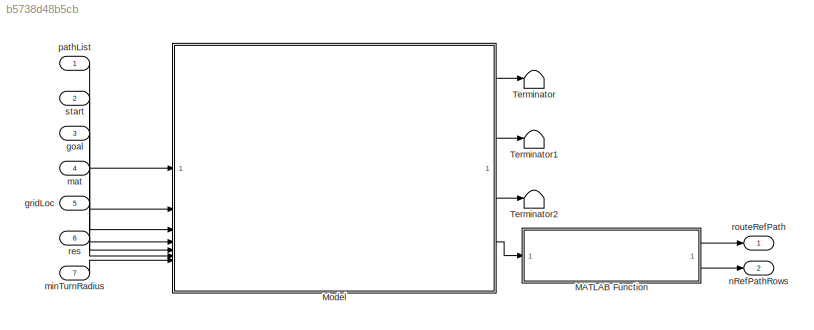
MODEL slx_b5738d48b5cb
KIND model
CONFIG AbsTol = auto
CONFIG EnableMultiTasking = off
CONFIG FixedStep = auto
CONFIG MaxStep = auto
CONFIG MinStep = auto
CONFIG RelTol = 1e-3
CONFIG SampleTimeConstraint = Unconstrained
CONFIG SolverName = FixedStepAuto
CONFIG StartTime = 0.0
CONFIG StopTime = 10.0
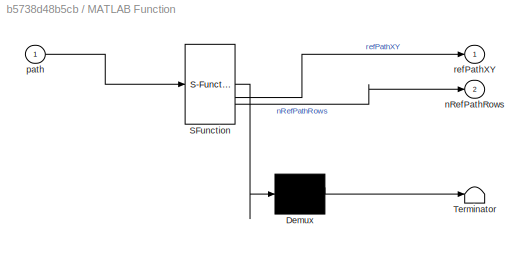
BLOCK [SubSystem] MATLAB Function
  ErrorFcn = Stateflow.Translate.translate
  LibrarySourceBlock = simulink/User-Defined\nFunctions/MATLAB Function
  PermitHierarchicalResolution = ExplicitOnly
  SFBlockType = MATLAB Function
  TreatAsAtomicUnit = on
BLOCK [Demux] MATLAB Function/ Demux 
  Outputs = 1
BLOCK [S-Function] MATLAB Function/ SFunction 
  EnableBusSupport = on
  FunctionName = sf_sfun
  Parameters = maxRefPathLen
  PortCounts = [1 3]
  SFcnIsStateOwnerBlock = off
  SFunctionDeploymentMode = off
  Tag = Stateflow S-Function 5
BLOCK [Terminator] MATLAB Function/ Terminator 
BLOCK [Outport] MATLAB Function/nRefPathRows
  Port = 2
BLOCK [Inport] MATLAB Function/path
BLOCK [Outport] MATLAB Function/refPathXY
BLOCK [ModelReference] Model
  ModelNameDialog = RoutePlanner.slx
  ModelReferenceVersion = 3.3
BLOCK [Terminator] Terminator
BLOCK [Terminator] Terminator1
BLOCK [Terminator] Terminator2
BLOCK [Inport] goal
  Port = 3
BLOCK [Inport] gridLoc
  Port = 5
BLOCK [Inport] mat
  Port = 4
BLOCK [Inport] minTurnRadius
  Port = 7
BLOCK [Outport] nRefPathRows
  Port = 2
BLOCK [Inport] pathList
  OutDataTypeStr = Bus: pathList_fixed_bus
BLOCK [Inport] res
  Port = 6
BLOCK [Outport] routeRefPath
  NameLocation = top
BLOCK [Inport] start
  Port = 2
LINE MATLAB Function:1 -> routeRefPath:1
LINE MATLAB Function:2 -> nRefPathRows:1
LINE Model:1 -> Terminator:1
LINE Model:2 -> Terminator1:1
LINE Model:3 -> Terminator2:1
LINE Model:4 -> MATLAB Function:1
LINE goal:1 -> Model:3
LINE gridLoc:1 -> Model:5
LINE mat:1 -> Model:4
LINE minTurnRadius:1 -> Model:7
LINE pathList:1 -> Model:1
LINE res:1 -> Model:6
LINE start:1 -> Model:2
CHART MATLAB Function states=1 transitions=1
  STATE_LABEL 'eML_blk_kernel()'
  STATE_LABEL 'SCRIPT:\nfunction [refPathXY, nRefPathRows] = packPath(path, maxRefPathLen)\n\n    % Allocate output buffer\n    refPathXY = zeros(maxRefPathLen,3);\n    nRefPathRows = size(path,1);\n    refPathXY(1:nRefPathRows,:) = path;\nend'
CHART  states=0 transitions=0
